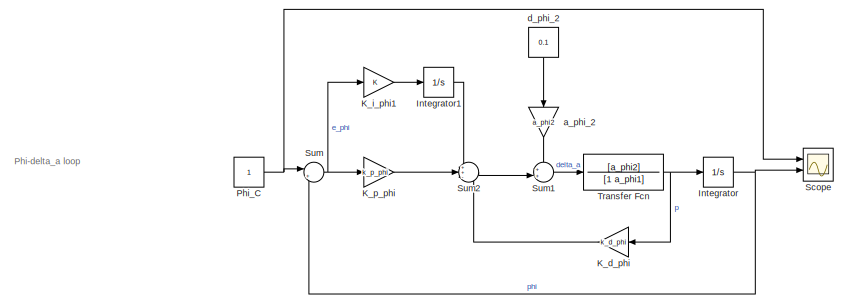
[diagram: root canvas - part 1/4, top center region]
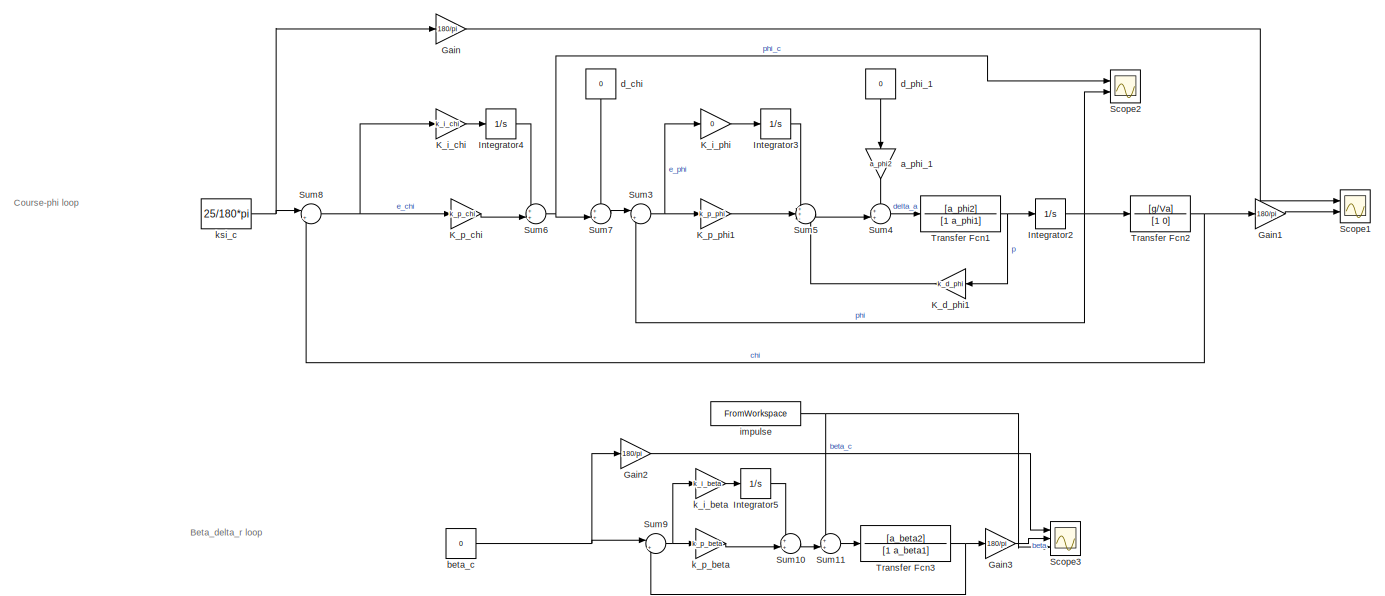
[diagram: root canvas - part 2/4, middle left region]
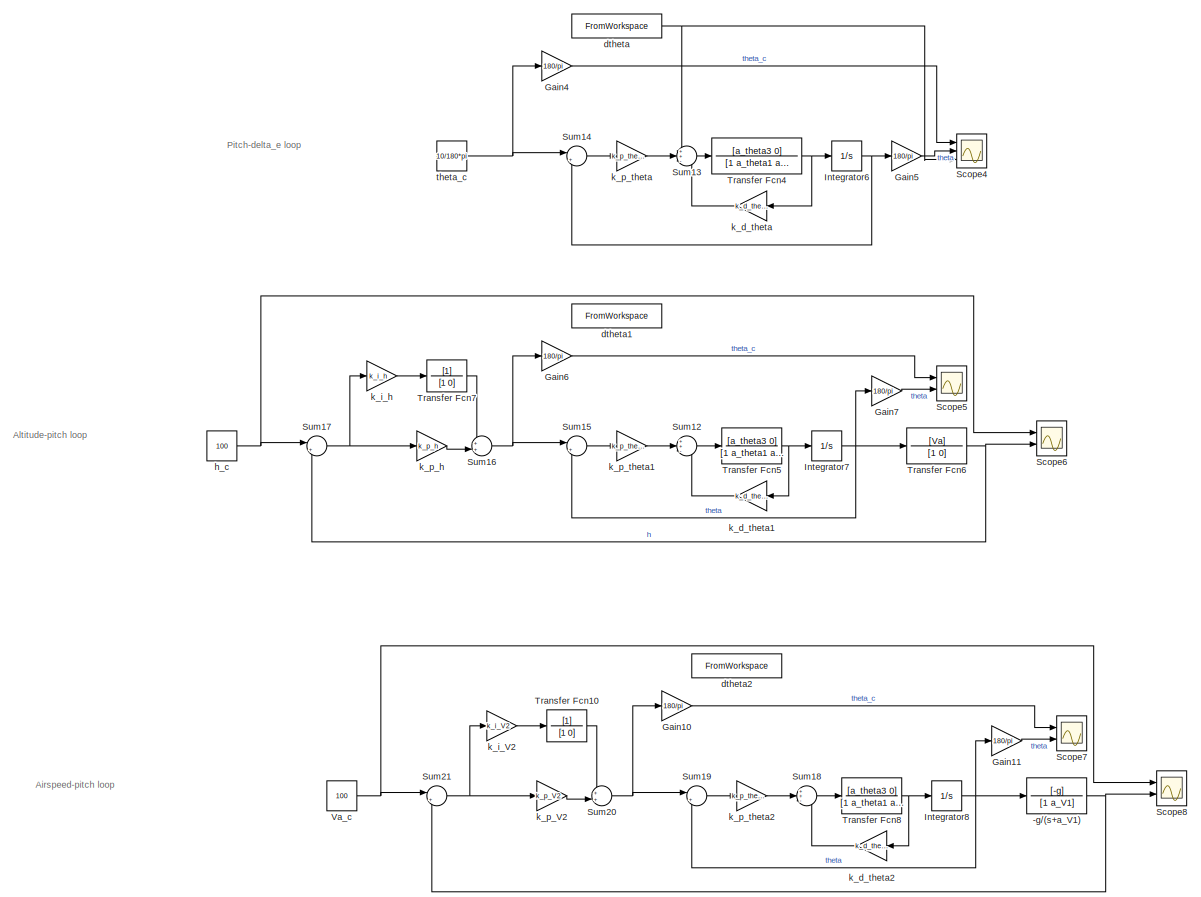
[diagram: root canvas - part 3/4, bottom left region]
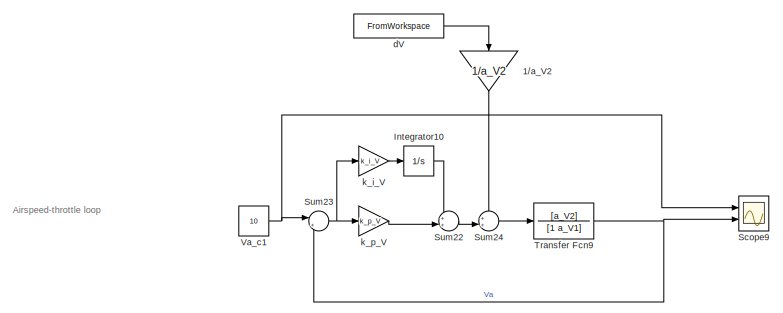
[diagram: root canvas - part 4/4, bottom right region]
MODEL slx_531368ee86d1
KIND model
CONFIG AbsTol = auto
CONFIG EnableMultiTasking = off
CONFIG FixedStep = auto
CONFIG MaxStep = auto
CONFIG MinStep = auto
CONFIG RelTol = 1e-3
CONFIG SampleTimeConstraint = Unconstrained
CONFIG SolverName = VariableStepAuto
CONFIG StartTime = 0.0
CONFIG StopTime = 20
BLOCK [TransferFcn] -g//(s+a_V1)
  Denominator = [1 a_V1]
  Numerator = [-g]
BLOCK [Gain] 1//a_V2
  Gain = 1/a_V2
  NameLocation = left
BLOCK [Gain] Gain
  Gain = 180/pi
BLOCK [Gain] Gain1
  Gain = 180/pi
BLOCK [Gain] Gain10
  Gain = 180/pi
BLOCK [Gain] Gain11
  Gain = 180/pi
BLOCK [Gain] Gain2
  Gain = 180/pi
BLOCK [Gain] Gain3
  Gain = 180/pi
BLOCK [Gain] Gain4
  Gain = 180/pi
BLOCK [Gain] Gain5
  Gain = 180/pi
BLOCK [Gain] Gain6
  Gain = 180/pi
BLOCK [Gain] Gain7
  Gain = 180/pi
BLOCK [Integrator] Integrator
  Ports = [1, 1]
BLOCK [Integrator] Integrator1
  Ports = [1, 1]
BLOCK [Integrator] Integrator10
  Ports = [1, 1]
BLOCK [Integrator] Integrator2
  Ports = [1, 1]
BLOCK [Integrator] Integrator3
  Ports = [1, 1]
BLOCK [Integrator] Integrator4
  Ports = [1, 1]
BLOCK [Integrator] Integrator5
  Ports = [1, 1]
BLOCK [Integrator] Integrator6
  Ports = [1, 1]
BLOCK [Integrator] Integrator7
  Ports = [1, 1]
BLOCK [Integrator] Integrator8
  Ports = [1, 1]
BLOCK [Gain] K_d_phi
  Gain = k_d_phi
  NameLocation = top
BLOCK [Gain] K_d_phi1
  Gain = k_d_phi
  NameLocation = top
BLOCK [Gain] K_i_chi
  Gain = k_i_chi
BLOCK [Gain] K_i_phi
  Gain = 0
BLOCK [Gain] K_i_phi1
BLOCK [Gain] K_p_chi
  Gain = k_p_chi
BLOCK [Gain] K_p_phi
  Gain = k_p_phi
BLOCK [Gain] K_p_phi1
  Gain = k_p_phi
BLOCK [Constant] Phi_C
BLOCK [Scope] Scope
  Floating = off
  NumInputPorts = 2
  Ports = [2]
  ScopeSpecificationString = Simulink.scopes.TimeScopeBlockCfg('CurrentConfiguration', extmgr.ConfigurationSet(extmgr.Configuration('Core','General UI',true),extmgr.Configuration('Core','Source UI',true),extmgr.Configuration('Sources','WiredSimulink',true),extmgr.Configuration('Visuals','Time Domain',true,'SerializedDisplays',{struct('MinYLimReal','-0.15872','MaxYLimReal','1.42852','YLabelReal','','MinYLimMag','0.00000','MaxY...<+1329ch>
BLOCK [Scope] Scope1
  Floating = off
  NumInputPorts = 2
  Ports = [2]
  ScopeSpecificationString = Simulink.scopes.TimeScopeBlockCfg('CurrentConfiguration', extmgr.ConfigurationSet(extmgr.Configuration('Core','General UI',true),extmgr.Configuration('Core','Source UI',true),extmgr.Configuration('Sources','WiredSimulink',true,'DataLoggingVariableName','ScopeData1'),extmgr.Configuration('Visuals','Time Domain',true,'SerializedDisplays',{struct('MinYLimReal','-3.71878','MaxYLimReal','33.46902','YLa...<+1373ch>
BLOCK [Scope] Scope2
  Floating = off
  NumInputPorts = 2
  Ports = [2]
  ScopeSpecificationString = Simulink.scopes.TimeScopeBlockCfg('CurrentConfiguration', extmgr.ConfigurationSet(extmgr.Configuration('Core','General UI',true),extmgr.Configuration('Core','Source UI',true),extmgr.Configuration('Sources','WiredSimulink',true,'DataLoggingVariableName','ScopeData2'),extmgr.Configuration('Visuals','Time Domain',true,'SerializedDisplays',{struct('MinYLimReal','-0.41938','MaxYLimReal','2.75183','YLab...<+1368ch>
BLOCK [Scope] Scope3
  Floating = off
  NumInputPorts = 3
  Ports = [3]
  ScopeSpecificationString = Simulink.scopes.TimeScopeBlockCfg('CurrentConfiguration', extmgr.ConfigurationSet(extmgr.Configuration('Core','General UI',true,'FigureColor',[1 1 1]),extmgr.Configuration('Core','Source UI',true),extmgr.Configuration('Sources','WiredSimulink',true,'DataLoggingVariableName','ScopeData3'),extmgr.Configuration('Visuals','Time Domain',true,'SerializedDisplays',{struct('MinYLimReal','-1.12689','MaxYLi...<+2205ch>
BLOCK [Scope] Scope4
  Floating = off
  NumInputPorts = 3
  Ports = [3]
  ScopeSpecificationString = Simulink.scopes.TimeScopeBlockCfg('CurrentConfiguration', extmgr.ConfigurationSet(extmgr.Configuration('Core','General UI',true),extmgr.Configuration('Core','Source UI',true),extmgr.Configuration('Sources','WiredSimulink',true,'DataLoggingVariableName','ScopeData1'),extmgr.Configuration('Visuals','Time Domain',true,'SerializedDisplays',{struct('MinYLimReal','-1.25','MaxYLimReal','11.25','YLabelRea...<+1367ch>
BLOCK [Scope] Scope5
  Floating = off
  NumInputPorts = 2
  Ports = [2]
  ScopeSpecificationString = Simulink.scopes.TimeScopeBlockCfg('CurrentConfiguration', extmgr.ConfigurationSet(extmgr.Configuration('Core','General UI',true),extmgr.Configuration('Core','Source UI',true),extmgr.Configuration('Sources','WiredSimulink',true,'DataLoggingVariableName','ScopeData2'),extmgr.Configuration('Visuals','Time Domain',true,'SerializedDisplays',{struct('MinYLimReal','-213.72568','MaxYLimReal','782.39009','...<+1442ch>
BLOCK [Scope] Scope6
  Floating = off
  NumInputPorts = 2
  Ports = [2]
  ScopeSpecificationString = Simulink.scopes.TimeScopeBlockCfg('CurrentConfiguration', extmgr.ConfigurationSet(extmgr.Configuration('Core','General UI',true),extmgr.Configuration('Core','Source UI',true),extmgr.Configuration('Sources','WiredSimulink',true,'DataLoggingVariableName','ScopeData3'),extmgr.Configuration('Visuals','Time Domain',true,'SerializedDisplays',{struct('MinYLimReal','-14.80019','MaxYLimReal','133.20167','Y...<+1374ch>
BLOCK [Scope] Scope7
  Floating = off
  NumInputPorts = 2
  Ports = [2]
  ScopeSpecificationString = Simulink.scopes.TimeScopeBlockCfg('CurrentConfiguration', extmgr.ConfigurationSet(extmgr.Configuration('Core','General UI',true),extmgr.Configuration('Core','Source UI',true),extmgr.Configuration('Sources','WiredSimulink',true,'DataLoggingVariableName','ScopeData1'),extmgr.Configuration('Visuals','Time Domain',true,'SerializedDisplays',{struct('MinYLimReal','-348.09368','MaxYLimReal','38.67708','Y...<+1384ch>
BLOCK [Scope] Scope8
  Floating = off
  NumInputPorts = 2
  Ports = [2]
  ScopeSpecificationString = Simulink.scopes.TimeScopeBlockCfg('CurrentConfiguration', extmgr.ConfigurationSet(extmgr.Configuration('Core','General UI',true),extmgr.Configuration('Core','Source UI',true),extmgr.Configuration('Sources','WiredSimulink',true,'DataLoggingVariableName','ScopeData2'),extmgr.Configuration('Visuals','Time Domain',true,'SerializedDisplays',{struct('MinYLimReal','-14.43088','MaxYLimReal','129.87789','Y...<+1443ch>
BLOCK [Scope] Scope9
  Floating = off
  NumInputPorts = 2
  Ports = [2]
  ScopeSpecificationString = Simulink.scopes.TimeScopeBlockCfg('CurrentConfiguration', extmgr.ConfigurationSet(extmgr.Configuration('Core','General UI',true),extmgr.Configuration('Core','Source UI',true),extmgr.Configuration('Sources','WiredSimulink',true,'DataLoggingVariableName','ScopeData3'),extmgr.Configuration('Visuals','Time Domain',true,'SerializedDisplays',{struct('MinYLimReal','-1.41823','MaxYLimReal','12.76407','YLa...<+1371ch>
BLOCK [Sum] Sum
  Inputs = |+-
  Ports = [2, 1]
BLOCK [Sum] Sum1
  Inputs = ++|
  Ports = [2, 1]
BLOCK [Sum] Sum10
  Inputs = ++|
  Ports = [2, 1]
BLOCK [Sum] Sum11
  Inputs = ++|
  Ports = [2, 1]
BLOCK [Sum] Sum12
  Inputs = ++-
  Ports = [3, 1]
BLOCK [Sum] Sum13
  Inputs = ++-
  Ports = [3, 1]
BLOCK [Sum] Sum14
  Inputs = |+-
  Ports = [2, 1]
BLOCK [Sum] Sum15
  Inputs = |+-
  Ports = [2, 1]
BLOCK [Sum] Sum16
  Inputs = ++|
  Ports = [2, 1]
BLOCK [Sum] Sum17
  Inputs = |+-
  Ports = [2, 1]
BLOCK [Sum] Sum18
  Inputs = ++-
  Ports = [3, 1]
BLOCK [Sum] Sum19
  Inputs = |+-
  Ports = [2, 1]
BLOCK [Sum] Sum2
  Inputs = ++-
  Ports = [3, 1]
BLOCK [Sum] Sum20
  Inputs = ++|
  Ports = [2, 1]
BLOCK [Sum] Sum21
  Inputs = |+-
  Ports = [2, 1]
BLOCK [Sum] Sum22
  Inputs = ++|
  Ports = [2, 1]
BLOCK [Sum] Sum23
  Inputs = |+-
  Ports = [2, 1]
BLOCK [Sum] Sum24
  Inputs = ++|
  Ports = [2, 1]
BLOCK [Sum] Sum3
  Inputs = |+-
  Ports = [2, 1]
BLOCK [Sum] Sum4
  Inputs = ++|
  Ports = [2, 1]
BLOCK [Sum] Sum5
  Inputs = ++-
  Ports = [3, 1]
BLOCK [Sum] Sum6
  Inputs = ++|
  Ports = [2, 1]
BLOCK [Sum] Sum7
  Inputs = ++|
  Ports = [2, 1]
BLOCK [Sum] Sum8
  Inputs = |+-
  Ports = [2, 1]
BLOCK [Sum] Sum9
  Inputs = |+-
  Ports = [2, 1]
BLOCK [TransferFcn] Transfer Fcn
  Denominator = [1 a_phi1]
  Numerator = [a_phi2]
BLOCK [TransferFcn] Transfer Fcn1
  Denominator = [1 a_phi1]
  Numerator = [a_phi2]
BLOCK [TransferFcn] Transfer Fcn10
  Denominator = [1 0]
BLOCK [TransferFcn] Transfer Fcn2
  Denominator = [1 0]
  Numerator = [g/Va]
BLOCK [TransferFcn] Transfer Fcn3
  Denominator = [1 a_beta1]
  Numerator = [a_beta2]
BLOCK [TransferFcn] Transfer Fcn4
  Denominator = [1 a_theta1 a_theta2]
  Numerator = [a_theta3 0]
BLOCK [TransferFcn] Transfer Fcn5
  Denominator = [1 a_theta1 a_theta2]
  Numerator = [a_theta3 0]
BLOCK [TransferFcn] Transfer Fcn6
  Denominator = [1 0]
  Numerator = [Va]
BLOCK [TransferFcn] Transfer Fcn7
  Denominator = [1 0]
BLOCK [TransferFcn] Transfer Fcn8
  Denominator = [1 a_theta1 a_theta2]
  Numerator = [a_theta3 0]
BLOCK [TransferFcn] Transfer Fcn9
  Denominator = [1 a_V1]
  Numerator = [a_V2]
BLOCK [Constant] Va_c
  Value = 100
BLOCK [Constant] Va_c1
  Value = 10
BLOCK [Gain] a_phi_1
  Gain = a_phi2
  NameLocation = left
BLOCK [Gain] a_phi_2
  Gain = a_phi2
  NameLocation = left
BLOCK [Constant] beta_c
  Value = 0
BLOCK [FromWorkspace] dV
  VariableName = [0, 0; 2.0, 0; 2.01, 0.2; 2.5, 0.2; 2.51, 0.0; 13.0, 0.0]
BLOCK [Constant] d_chi
  NameLocation = left
  Value = 0
BLOCK [Constant] d_phi_1
  NameLocation = left
  Value = 0
BLOCK [Constant] d_phi_2
  NameLocation = left
  Value = 0.1
BLOCK [FromWorkspace] dtheta
  VariableName = [0, 0; 2.0, 0; 2.01, 0.2; 2.5, 0.2; 2.51, 0.0; 13.0, 0.0]
BLOCK [FromWorkspace] dtheta1
  VariableName = [0, 0; 2.0, 0; 2.01, 0.2; 2.5, 0.2; 2.51, 0.0; 13.0, 0.0]
BLOCK [FromWorkspace] dtheta2
  VariableName = [0, 0; 2.0, 0; 2.01, 0.2; 2.5, 0.2; 2.51, 0.0; 13.0, 0.0]
BLOCK [Constant] h_c
  Value = 100
BLOCK [FromWorkspace] impulse
  VariableName = [0, 0; 2.0, 0; 2.01, 0.2; 2.5, 0.2; 2.51, 0.0; 13.0, 0.0]
BLOCK [Gain] k_d_theta
  Gain = k_d_theta
  NameLocation = top
BLOCK [Gain] k_d_theta1
  Gain = k_d_theta
  NameLocation = top
BLOCK [Gain] k_d_theta2
  Gain = k_d_theta
  NameLocation = top
BLOCK [Gain] k_i_V
  Gain = k_i_V
BLOCK [Gain] k_i_V2
  Gain = k_i_V2
BLOCK [Gain] k_i_beta
  Gain = k_i_beta
BLOCK [Gain] k_i_h
  Gain = k_i_h
BLOCK [Gain] k_p_V
  Gain = k_p_V
BLOCK [Gain] k_p_V2
  Gain = k_p_V2
BLOCK [Gain] k_p_beta
  Gain = k_p_beta
BLOCK [Gain] k_p_h
  Gain = k_p_h
BLOCK [Gain] k_p_theta
  Gain = k_p_theta
BLOCK [Gain] k_p_theta1
  Gain = k_p_theta
BLOCK [Gain] k_p_theta2
  Gain = k_p_theta
BLOCK [Constant] ksi_c
  Value = 25/180*pi
BLOCK [Constant] theta_c
  Value = 10/180*pi
ANNOTATION (root): Airspeed-pitch loop
ANNOTATION (root): Airspeed-throttle loop
ANNOTATION (root): Altitude-pitch loop
ANNOTATION (root): Beta_delta_r loop
ANNOTATION (root): Course-phi loop
ANNOTATION (root): Phi-delta_a loop
ANNOTATION (root): Pitch-delta_e loop
NET -g//(s+a_V1):1 -> Scope8:2, Sum21:2
LINE 1//a_V2:1 -> Sum24:1
LINE Gain10:1 -> Scope7:1
LINE Gain11:1 -> Scope7:2
LINE Gain1:1 -> Scope1:2
LINE Gain2:1 -> Scope3:1
LINE Gain3:1 -> Scope3:2
LINE Gain4:1 -> Scope4:1
LINE Gain5:1 -> Scope4:2
LINE Gain6:1 -> Scope5:1
LINE Gain7:1 -> Scope5:2
LINE Gain:1 -> Scope1:1
LINE Integrator10:1 -> Sum22:1
LINE Integrator1:1 -> Sum2:1
NET Integrator2:1 -> Scope2:2, Sum3:2, Transfer Fcn2:1
LINE Integrator3:1 -> Sum5:1
LINE Integrator4:1 -> Sum6:1
LINE Integrator5:1 -> Sum10:1
NET Integrator6:1 -> Gain5:1, Sum14:2
NET Integrator7:1 -> Gain7:1, Sum15:2, Transfer Fcn6:1
NET Integrator8:1 -> -g//(s+a_V1):1, Gain11:1, Sum19:2
NET Integrator:1 -> Scope:2, Sum:2
LINE K_d_phi1:1 -> Sum5:3
LINE K_d_phi:1 -> Sum2:3
LINE K_i_chi:1 -> Integrator4:1
LINE K_i_phi1:1 -> Integrator1:1
LINE K_i_phi:1 -> Integrator3:1
LINE K_p_chi:1 -> Sum6:2
LINE K_p_phi1:1 -> Sum5:2
LINE K_p_phi:1 -> Sum2:2
NET Phi_C:1 -> Scope:1, Sum:1
LINE Sum10:1 -> Sum11:2
LINE Sum11:1 -> Transfer Fcn3:1
LINE Sum12:1 -> Transfer Fcn5:1
LINE Sum13:1 -> Transfer Fcn4:1
LINE Sum14:1 -> k_p_theta:1
LINE Sum15:1 -> k_p_theta1:1
NET Sum16:1 -> Gain6:1, Sum15:1
NET Sum17:1 -> k_i_h:1, k_p_h:1
LINE Sum18:1 -> Transfer Fcn8:1
LINE Sum19:1 -> k_p_theta2:1
LINE Sum1:1 -> Transfer Fcn:1
NET Sum20:1 -> Gain10:1, Sum19:1
NET Sum21:1 -> k_i_V2:1, k_p_V2:1
LINE Sum22:1 -> Sum24:2
NET Sum23:1 -> k_i_V:1, k_p_V:1
LINE Sum24:1 -> Transfer Fcn9:1
LINE Sum2:1 -> Sum1:2
NET Sum3:1 -> K_i_phi:1, K_p_phi1:1
LINE Sum4:1 -> Transfer Fcn1:1
LINE Sum5:1 -> Sum4:2
NET Sum6:1 -> Scope2:1, Sum7:2
LINE Sum7:1 -> Sum3:1
NET Sum8:1 -> K_i_chi:1, K_p_chi:1
NET Sum9:1 -> k_i_beta:1, k_p_beta:1
NET Sum:1 -> K_i_phi1:1, K_p_phi:1
LINE Transfer Fcn10:1 -> Sum20:1
NET Transfer Fcn1:1 -> Integrator2:1, K_d_phi1:1
NET Transfer Fcn2:1 -> Gain1:1, Sum8:2
NET Transfer Fcn3:1 -> Gain3:1, Sum9:2
NET Transfer Fcn4:1 -> Integrator6:1, k_d_theta:1
NET Transfer Fcn5:1 -> Integrator7:1, k_d_theta1:1
NET Transfer Fcn6:1 -> Scope6:2, Sum17:2
LINE Transfer Fcn7:1 -> Sum16:1
NET Transfer Fcn8:1 -> Integrator8:1, k_d_theta2:1
NET Transfer Fcn9:1 -> Scope9:2, Sum23:2
NET Transfer Fcn:1 -> Integrator:1, K_d_phi:1
NET Va_c1:1 -> Scope9:1, Sum23:1
NET Va_c:1 -> Scope8:1, Sum21:1
LINE a_phi_1:1 -> Sum4:1
LINE a_phi_2:1 -> Sum1:1
NET beta_c:1 -> Gain2:1, Sum9:1
LINE dV:1 -> 1//a_V2:1
LINE d_chi:1 -> Sum7:1
LINE d_phi_1:1 -> a_phi_1:1
LINE d_phi_2:1 -> a_phi_2:1
NET dtheta:1 -> Scope4:3, Sum13:1
NET h_c:1 -> Scope6:1, Sum17:1
NET impulse:1 -> Scope3:3, Sum11:1
LINE k_d_theta1:1 -> Sum12:3
LINE k_d_theta2:1 -> Sum18:3
LINE k_d_theta:1 -> Sum13:3
LINE k_i_V2:1 -> Transfer Fcn10:1
LINE k_i_V:1 -> Integrator10:1
LINE k_i_beta:1 -> Integrator5:1
LINE k_i_h:1 -> Transfer Fcn7:1
LINE k_p_V2:1 -> Sum20:2
LINE k_p_V:1 -> Sum22:2
LINE k_p_beta:1 -> Sum10:2
LINE k_p_h:1 -> Sum16:2
LINE k_p_theta1:1 -> Sum12:2
LINE k_p_theta2:1 -> Sum18:2
LINE k_p_theta:1 -> Sum13:2
NET ksi_c:1 -> Gain:1, Sum8:1
NET theta_c:1 -> Gain4:1, Sum14:1
note: NET lines group one-source signal fan-out (src -> all destinations, sorted); 1:1 wires keep LINE
